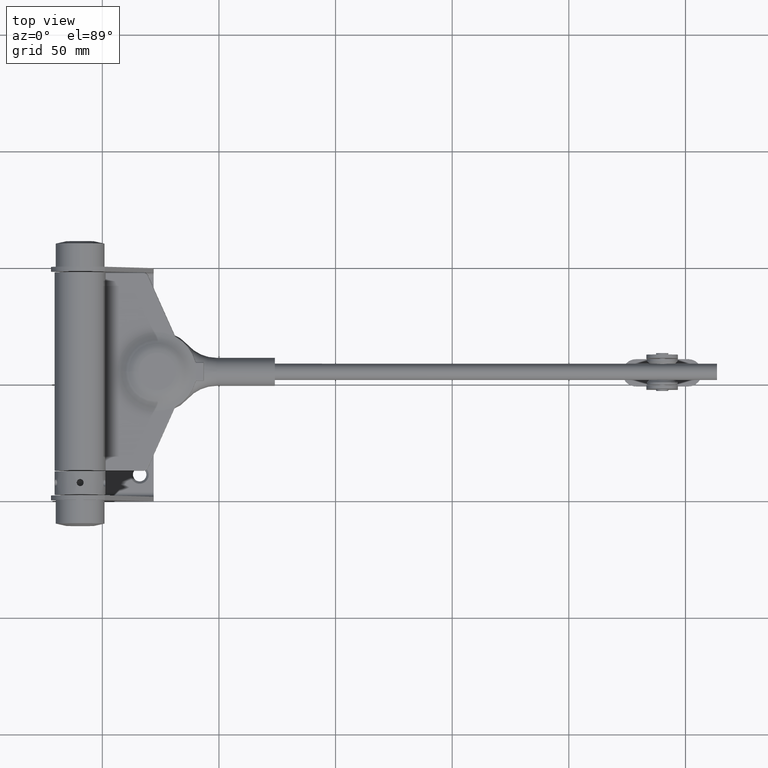
[diagram: clean part render]
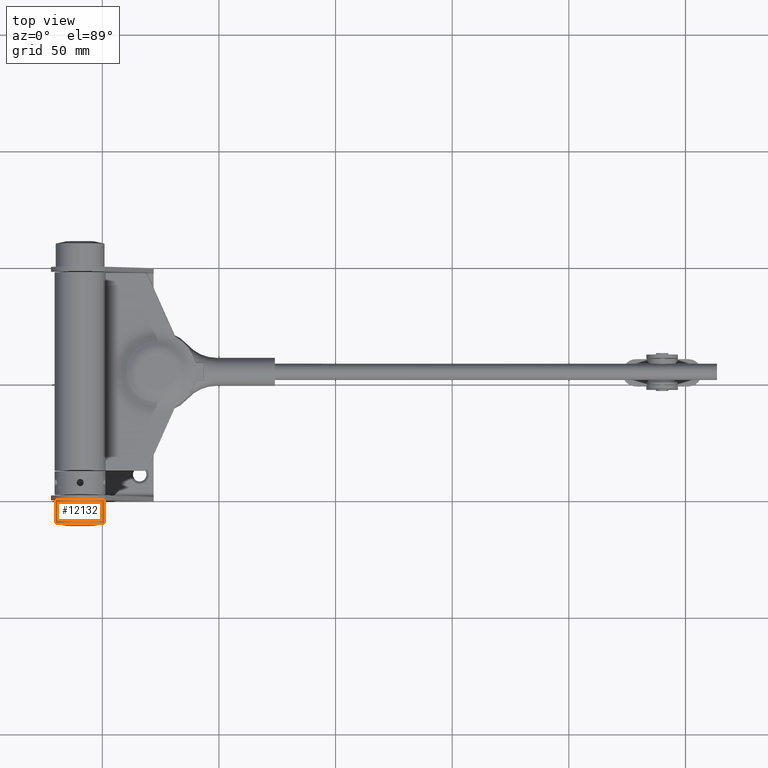
[diagram: same view with one face highlighted and labeled with its STEP entity id]
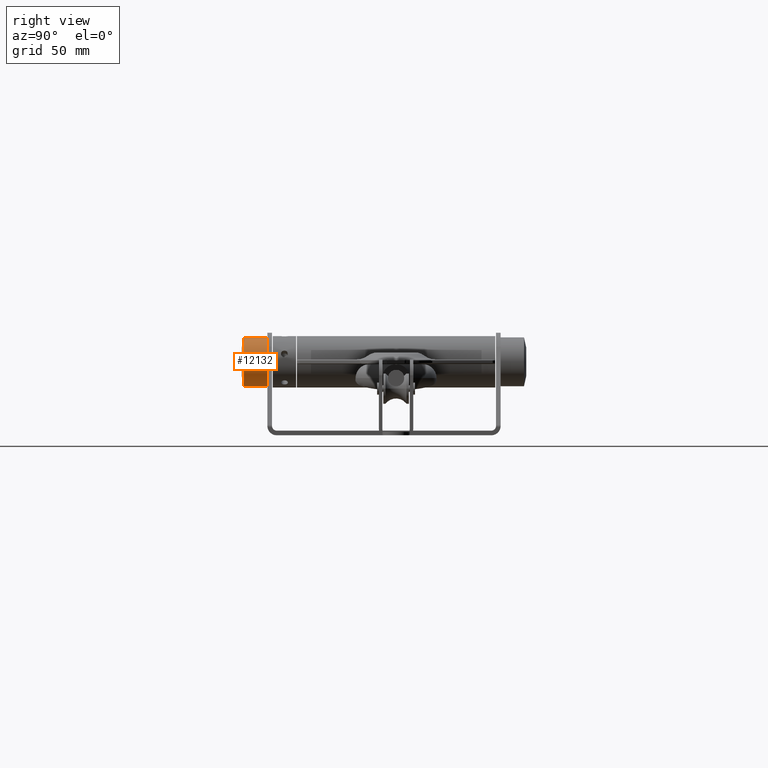
[diagram: same view with one face highlighted and labeled with its STEP entity id]
A machine part, top view. The second image highlights one B-rep face of the part: STEP entity #12132.
A second angle (right view) of the same face is appended — the face is thin or edge-on in the first view.
In plain terms, the highlighted cylindrical surface (bore or boss wall) has radius 10.5 mm, axis along (0, 1, 0).
Its self-contained STEP definition (entity closure, byte-faithful):
#1294 = VERTEX_POINT ( 'NONE', #21708 ) ;
#1456 = CARTESIAN_POINT ( 'NONE',  ( 0.000000000000000000, 9.999999999999994671, 0.000000000000000000 ) ) ;
#2739 = CARTESIAN_POINT ( 'NONE',  ( 0.000000000000000000, 0.000000000000000000, 0.000000000000000000 ) ) ;
#2969 = VERTEX_POINT ( 'NONE', #14930 ) ;
#3301 = AXIS2_PLACEMENT_3D ( 'NONE', #2739, #11915, #8082 ) ;
#3755 = DIRECTION ( 'NONE',  ( 0.000000000000000000, 2.052683297350789969E-47, -1.000000000000000000 ) ) ;
#5330 = DIRECTION ( 'NONE',  ( 0.000000000000000000, -1.000000000000000000, 2.052683297350817681E-47 ) ) ;
#5976 = CARTESIAN_POINT ( 'NONE',  ( 0.000000000000000000, 0.000000000000000000, 0.000000000000000000 ) ) ;
#6938 = DIRECTION ( 'NONE',  ( 0.000000000000000000, 0.000000000000000000, -1.000000000000000000 ) ) ;
#8082 = DIRECTION ( 'NONE',  ( 0.000000000000000000, 2.052683297350789969E-47, -1.000000000000000000 ) ) ;
#8576 = FACE_OUTER_BOUND ( 'NONE', #15128, .T. ) ;
#8731 = EDGE_CURVE ( 'NONE', #1294, #1294, #13235, .T. ) ;
#11915 = DIRECTION ( 'NONE',  ( 0.000000000000000000, -1.000000000000000000, 2.052683297350817681E-47 ) ) ;
#12132 = ADVANCED_FACE ( 'NONE', ( #8576, #17738 ), #20625, .T. ) ;
#12853 = AXIS2_PLACEMENT_3D ( 'NONE', #1456, #14188, #6938 ) ;
#12938 = ORIENTED_EDGE ( 'NONE', *, *, #19044, .T. ) ;
#13235 = CIRCLE ( 'NONE', #23597, 10.50000000000014033 ) ;
#14188 = DIRECTION ( 'NONE',  ( 0.000000000000000000, -1.000000000000000000, 2.052683297350817681E-47 ) ) ;
#14377 = EDGE_LOOP ( 'NONE', ( #12938 ) ) ;
#14930 = CARTESIAN_POINT ( 'NONE',  ( 0.000000000000000000, 9.999999999999994671, -10.50000000000013856 ) ) ;
#15128 = EDGE_LOOP ( 'NONE', ( #23156 ) ) ;
#17738 = FACE_OUTER_BOUND ( 'NONE', #14377, .T. ) ;
#19044 = EDGE_CURVE ( 'NONE', #2969, #2969, #19645, .T. ) ;
#19645 = CIRCLE ( 'NONE', #12853, 10.50000000000013856 ) ;
#20625 = CYLINDRICAL_SURFACE ( 'NONE', #3301, 10.50000000000013856 ) ;
#21708 = CARTESIAN_POINT ( 'NONE',  ( 0.000000000000000000, 2.155317462218358237E-46, -10.50000000000014033 ) ) ;
#23156 = ORIENTED_EDGE ( 'NONE', *, *, #8731, .F. ) ;
#23597 = AXIS2_PLACEMENT_3D ( 'NONE', #5976, #5330, #3755 ) ;